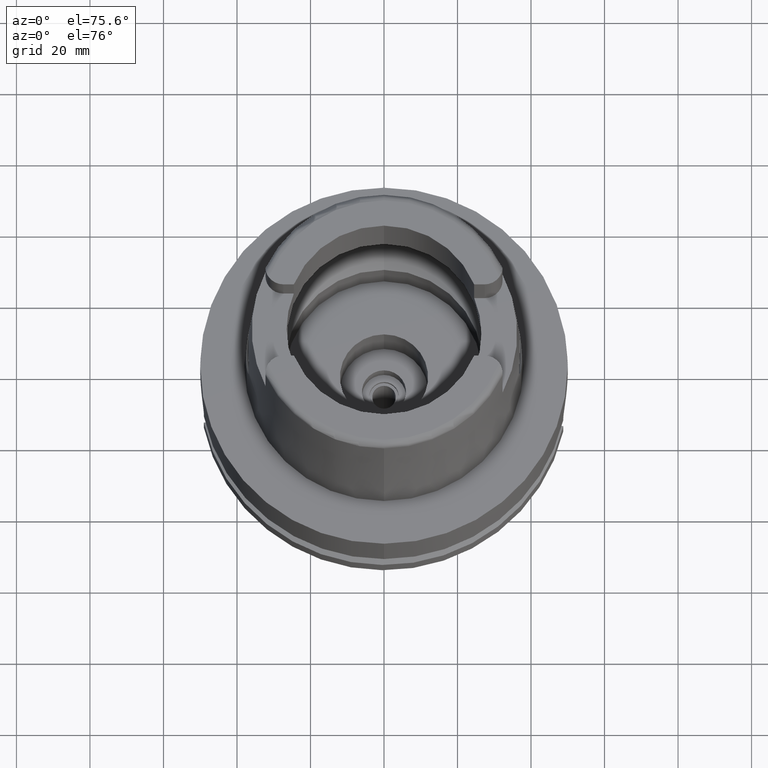
[diagram: clean part render]
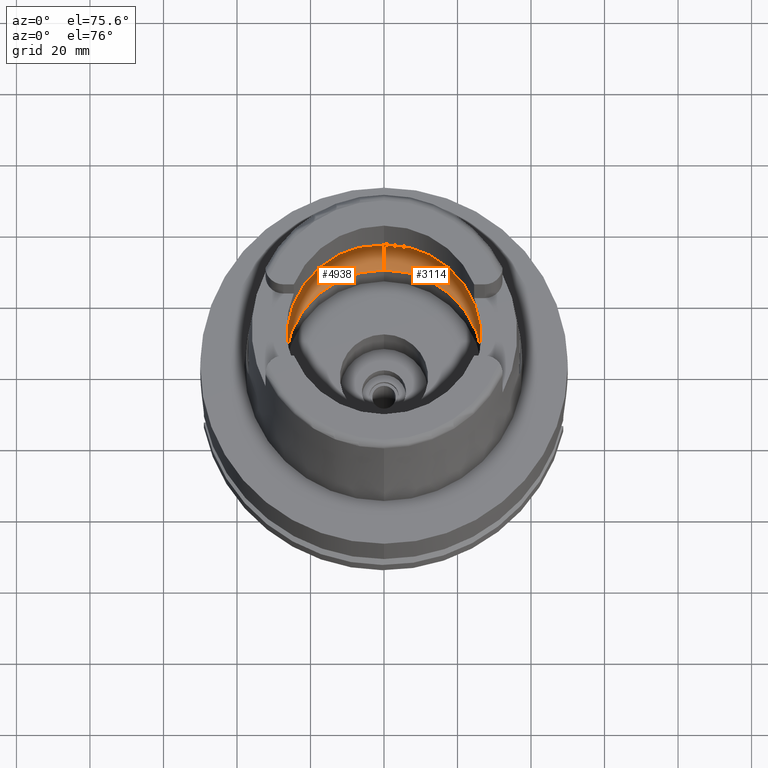
[diagram: same view with one multi-face feature highlighted, each face labeled with its STEP entity id]
A machine part, auxiliary view. The highlighted faces form ONE feature: a constant-radius fillet chain: 2 tangent blend faces with common blend radius 12 mm. The faces share edges in the B-rep.
Their STEP definitions:
[1] entity #4938 (Torus):
#57 = CARTESIAN_POINT ( 'NONE',  ( 0.0000000000000000000, 0.0000000000000000000, 9.496624327025999790 ) ) ;
#140 = DIRECTION ( 'NONE',  ( 0.0000000000000000000, 0.0000000000000000000, -1.000000000000000000 ) ) ;
#152 = CARTESIAN_POINT ( 'NONE',  ( -31.48971910754000447, 0.0000000000000000000, 9.000000000000000000 ) ) ;
#258 = CARTESIAN_POINT ( 'NONE',  ( -31.48971910754000447, 0.0000000000000000000, 9.000000000000000000 ) ) ;
#364 = VERTEX_POINT ( 'NONE', #258 ) ;
#424 = EDGE_CURVE ( 'NONE', #364, #4174, #2518, .T. ) ;
#544 = DIRECTION ( 'NONE',  ( -1.000000000000000000, 0.0000000000000000000, 0.0000000000000000000 ) ) ;
#657 = CARTESIAN_POINT ( 'NONE',  ( -31.46287568614665986, -1.684656700029165899, 9.190219625035021878 ) ) ;
#739 = ORIENTED_EDGE ( 'NONE', *, *, #424, .F. ) ;
#758 = AXIS2_PLACEMENT_3D ( 'NONE', #5295, #5824, #4389 ) ;
#973 = VERTEX_POINT ( 'NONE', #4364 ) ;
#1056 = CIRCLE ( 'NONE', #758, 11.99999999999999822 ) ;
#1279 = EDGE_LOOP ( 'NONE', ( #1684, #3192, #3551, #4428, #2115, #739, #4097 ) ) ;
#1357 = TOROIDAL_SURFACE ( 'NONE', #4069, 19.50000000000000000, 12.00000000000000000 ) ;
#1447 = AXIS2_PLACEMENT_3D ( 'NONE', #5758, #2014, #2899 ) ;
#1684 = ORIENTED_EDGE ( 'NONE', *, *, #2465, .F. ) ;
#1997 = DIRECTION ( 'NONE',  ( 0.0000000000000000000, -1.000000000000000000, 0.0000000000000000000 ) ) ;
#2014 = DIRECTION ( 'NONE',  ( 0.0000000000000000000, 0.0000000000000000000, 1.000000000000000000 ) ) ;
#2026 = CARTESIAN_POINT ( 'NONE',  ( 0.0000000000000000000, 0.0000000000000000000, 9.496624327025999790 ) ) ;
#2055 = DIRECTION ( 'NONE',  ( -0.9971171061384295209, 0.07587803796965221503, 0.0000000000000000000 ) ) ;
#2067 = CARTESIAN_POINT ( 'NONE',  ( -31.48971910754000447, 0.8697454016785111097, 9.000000000000001776 ) ) ;
#2115 = ORIENTED_EDGE ( 'NONE', *, *, #2919, .F. ) ;
#2212 = VERTEX_POINT ( 'NONE', #4875 ) ;
#2383 = CARTESIAN_POINT ( 'NONE',  ( -31.40918884336000616, -2.390158196043999705, 9.496624327025999790 ) ) ;
#2465 = EDGE_CURVE ( 'NONE', #3252, #5903, #5266, .T. ) ;
#2518 = B_SPLINE_CURVE_WITH_KNOTS ( 'NONE', 3,
 ( #152, #2067, #2986, #2603 ),
 .UNSPECIFIED., .F., .F.,
 ( 4, 4 ),
 ( 0.0000000000000000000, 1.000000000000000000 ),
 .UNSPECIFIED. ) ;
#2601 = VERTEX_POINT ( 'NONE', #4175 ) ;
#2603 = CARTESIAN_POINT ( 'NONE',  ( -31.40918884336000616, 2.390158196043999705, 9.496624327025999790 ) ) ;
#2899 = DIRECTION ( 'NONE',  ( 0.0000000000000000000, 1.000000000000000000, 0.0000000000000000000 ) ) ;
#2919 = EDGE_CURVE ( 'NONE', #4174, #2601, #2960, .T. ) ;
#2960 = CIRCLE ( 'NONE', #4172, 31.49999999999998934 ) ;
#2986 = CARTESIAN_POINT ( 'NONE',  ( -31.46287568614665986, 1.684656699916923683, 9.190219624986275093 ) ) ;
#2987 = DIRECTION ( 'NONE',  ( 0.0000000000000000000, 1.000000000000000000, 0.0000000000000000000 ) ) ;
#3014 = DIRECTION ( 'NONE',  ( 0.0000000000000000000, 0.0000000000000000000, 1.000000000000000000 ) ) ;
#3132 = CARTESIAN_POINT ( 'NONE',  ( -31.48971910754000447, -0.8697454018008697885, 8.999999999999998224 ) ) ;
#3169 = CIRCLE ( 'NONE', #4587, 11.99999999999999822 ) ;
#3192 = ORIENTED_EDGE ( 'NONE', *, *, #5699, .F. ) ;
#3252 = VERTEX_POINT ( 'NONE', #4254 ) ;
#3324 = B_SPLINE_CURVE_WITH_KNOTS ( 'NONE', 3,
 ( #5058, #657, #3132, #4024 ),
 .UNSPECIFIED., .F., .F.,
 ( 4, 4 ),
 ( 0.0000000000000000000, 1.000000000000000000 ),
 .UNSPECIFIED. ) ;
#3399 = EDGE_CURVE ( 'NONE', #2212, #2601, #1056, .T. ) ;
#3423 = EDGE_CURVE ( 'NONE', #2212, #973, #4180, .T. ) ;
#3524 = CARTESIAN_POINT ( 'NONE',  ( 0.0000000000000000000, -19.50000000000000000, 9.496624327025999790 ) ) ;
#3551 = ORIENTED_EDGE ( 'NONE', *, *, #3423, .F. ) ;
#3867 = FACE_OUTER_BOUND ( 'NONE', #1279, .T. ) ;
#4024 = CARTESIAN_POINT ( 'NONE',  ( -31.48971910754000447, 0.0000000000000000000, 9.000000000000000000 ) ) ;
#4069 = AXIS2_PLACEMENT_3D ( 'NONE', #57, #3014, #2987 ) ;
#4097 = ORIENTED_EDGE ( 'NONE', *, *, #5155, .F. ) ;
#4172 = AXIS2_PLACEMENT_3D ( 'NONE', #4457, #140, #2055 ) ;
#4174 = VERTEX_POINT ( 'NONE', #4692 ) ;
#4175 = CARTESIAN_POINT ( 'NONE',  ( 0.0000000000000000000, 31.50000000000000000, 9.496624327025999790 ) ) ;
#4180 = CIRCLE ( 'NONE', #1447, 26.89999999999999858 ) ;
#4254 = CARTESIAN_POINT ( 'NONE',  ( 0.0000000000000000000, -31.50000000000000000, 9.496624327025999790 ) ) ;
#4364 = CARTESIAN_POINT ( 'NONE',  ( 0.0000000000000000000, -26.89999999999999858, 0.04993178413037000635 ) ) ;
#4389 = DIRECTION ( 'NONE',  ( 0.0000000000000000000, 0.6166666666667049990, -0.7872243785746061429 ) ) ;
#4428 = ORIENTED_EDGE ( 'NONE', *, *, #3399, .T. ) ;
#4457 = CARTESIAN_POINT ( 'NONE',  ( 0.0000000000000000000, 0.0000000000000000000, 9.496624327025999790 ) ) ;
#4587 = AXIS2_PLACEMENT_3D ( 'NONE', #3524, #544, #4923 ) ;
#4692 = CARTESIAN_POINT ( 'NONE',  ( -31.40918884336000616, 2.390158196043999705, 9.496624327025999790 ) ) ;
#4773 = AXIS2_PLACEMENT_3D ( 'NONE', #2026, #5306, #1997 ) ;
#4875 = CARTESIAN_POINT ( 'NONE',  ( 0.0000000000000000000, 26.89999999999999858, 0.04993178413037000635 ) ) ;
#4923 = DIRECTION ( 'NONE',  ( 0.0000000000000000000, -0.6166666666667049990, -0.7872243785746061429 ) ) ;
#4938 = ADVANCED_FACE ( 'NONE', ( #3867 ), #1357, .F. ) ;
#5058 = CARTESIAN_POINT ( 'NONE',  ( -31.40918884336000616, -2.390158196043999705, 9.496624327025999790 ) ) ;
#5155 = EDGE_CURVE ( 'NONE', #5903, #364, #3324, .T. ) ;
#5266 = CIRCLE ( 'NONE', #4773, 31.50000000000000000 ) ;
#5295 = CARTESIAN_POINT ( 'NONE',  ( 0.0000000000000000000, 19.50000000000000000, 9.496624327025999790 ) ) ;
#5306 = DIRECTION ( 'NONE',  ( 0.0000000000000000000, 0.0000000000000000000, -1.000000000000000000 ) ) ;
#5699 = EDGE_CURVE ( 'NONE', #973, #3252, #3169, .T. ) ;
#5758 = CARTESIAN_POINT ( 'NONE',  ( 0.0000000000000000000, 0.0000000000000000000, 0.04993178413037000635 ) ) ;
#5824 = DIRECTION ( 'NONE',  ( 1.000000000000000000, 0.0000000000000000000, 0.0000000000000000000 ) ) ;
#5903 = VERTEX_POINT ( 'NONE', #2383 ) ;
[2] entity #3114 (Torus):
#97 = B_SPLINE_CURVE_WITH_KNOTS ( 'NONE', 3,
 ( #5343, #4851, #4761, #1001 ),
 .UNSPECIFIED., .F., .F.,
 ( 4, 4 ),
 ( 0.0000000000000000000, 1.000000000000000000 ),
 .UNSPECIFIED. ) ;
#202 = DIRECTION ( 'NONE',  ( 0.0000000000000000000, 1.000000000000000000, 0.0000000000000000000 ) ) ;
#271 = DIRECTION ( 'NONE',  ( 0.0000000000000000000, 0.0000000000000000000, -1.000000000000000000 ) ) ;
#419 = AXIS2_PLACEMENT_3D ( 'NONE', #4914, #3421, #3929 ) ;
#430 = EDGE_CURVE ( 'NONE', #2507, #3252, #2127, .T. ) ;
#544 = DIRECTION ( 'NONE',  ( -1.000000000000000000, 0.0000000000000000000, 0.0000000000000000000 ) ) ;
#588 = CARTESIAN_POINT ( 'NONE',  ( 31.48971910754000447, 0.0000000000000000000, 9.000000000000000000 ) ) ;
#758 = AXIS2_PLACEMENT_3D ( 'NONE', #5295, #5824, #4389 ) ;
#822 = AXIS2_PLACEMENT_3D ( 'NONE', #2146, #271, #4013 ) ;
#899 = CARTESIAN_POINT ( 'NONE',  ( 31.40918884336000616, -2.390158196043999705, 9.496624327025999790 ) ) ;
#920 = VERTEX_POINT ( 'NONE', #588 ) ;
#973 = VERTEX_POINT ( 'NONE', #4364 ) ;
#1001 = CARTESIAN_POINT ( 'NONE',  ( 31.48971910754000447, 0.0000000000000000000, 9.000000000000000000 ) ) ;
#1034 = EDGE_CURVE ( 'NONE', #2601, #2751, #4857, .T. ) ;
#1056 = CIRCLE ( 'NONE', #758, 11.99999999999999822 ) ;
#1138 = DIRECTION ( 'NONE',  ( 0.0000000000000000000, 0.0000000000000000000, 1.000000000000000000 ) ) ;
#1249 = ORIENTED_EDGE ( 'NONE', *, *, #3399, .F. ) ;
#1384 = ORIENTED_EDGE ( 'NONE', *, *, #1034, .F. ) ;
#1442 = TOROIDAL_SURFACE ( 'NONE', #2859, 19.50000000000000000, 12.00000000000000000 ) ;
#1588 = EDGE_LOOP ( 'NONE', ( #5492, #1384, #1249, #3751, #3094, #2114, #3664 ) ) ;
#1877 = CARTESIAN_POINT ( 'NONE',  ( 31.46287568614665986, -1.684656699965325632, 9.190219625007294724 ) ) ;
#2114 = ORIENTED_EDGE ( 'NONE', *, *, #430, .F. ) ;
#2127 = CIRCLE ( 'NONE', #419, 31.49999999999998934 ) ;
#2146 = CARTESIAN_POINT ( 'NONE',  ( 0.0000000000000000000, 0.0000000000000000000, 9.496624327025999790 ) ) ;
#2212 = VERTEX_POINT ( 'NONE', #4875 ) ;
#2309 = EDGE_CURVE ( 'NONE', #2751, #920, #97, .T. ) ;
#2507 = VERTEX_POINT ( 'NONE', #3924 ) ;
#2601 = VERTEX_POINT ( 'NONE', #4175 ) ;
#2654 = CIRCLE ( 'NONE', #2850, 26.89999999999999858 ) ;
#2693 = EDGE_CURVE ( 'NONE', #973, #2212, #2654, .T. ) ;
#2751 = VERTEX_POINT ( 'NONE', #6113 ) ;
#2850 = AXIS2_PLACEMENT_3D ( 'NONE', #5641, #5176, #3792 ) ;
#2859 = AXIS2_PLACEMENT_3D ( 'NONE', #5544, #1138, #202 ) ;
#3094 = ORIENTED_EDGE ( 'NONE', *, *, #5699, .T. ) ;
#3114 = ADVANCED_FACE ( 'NONE', ( #3599 ), #1442, .F. ) ;
#3169 = CIRCLE ( 'NONE', #4587, 11.99999999999999822 ) ;
#3252 = VERTEX_POINT ( 'NONE', #4254 ) ;
#3399 = EDGE_CURVE ( 'NONE', #2212, #2601, #1056, .T. ) ;
#3421 = DIRECTION ( 'NONE',  ( 0.0000000000000000000, 0.0000000000000000000, -1.000000000000000000 ) ) ;
#3524 = CARTESIAN_POINT ( 'NONE',  ( 0.0000000000000000000, -19.50000000000000000, 9.496624327025999790 ) ) ;
#3599 = FACE_OUTER_BOUND ( 'NONE', #1588, .T. ) ;
#3664 = ORIENTED_EDGE ( 'NONE', *, *, #5967, .F. ) ;
#3751 = ORIENTED_EDGE ( 'NONE', *, *, #2693, .F. ) ;
#3792 = DIRECTION ( 'NONE',  ( 0.0000000000000000000, -1.000000000000000000, 0.0000000000000000000 ) ) ;
#3924 = CARTESIAN_POINT ( 'NONE',  ( 31.40918884336000616, -2.390158196043999705, 9.496624327025999790 ) ) ;
#3929 = DIRECTION ( 'NONE',  ( 0.9971171061384295209, -0.07587803796965221503, 0.0000000000000000000 ) ) ;
#4013 = DIRECTION ( 'NONE',  ( 0.0000000000000000000, 1.000000000000000000, 0.0000000000000000000 ) ) ;
#4175 = CARTESIAN_POINT ( 'NONE',  ( 0.0000000000000000000, 31.50000000000000000, 9.496624327025999790 ) ) ;
#4254 = CARTESIAN_POINT ( 'NONE',  ( 0.0000000000000000000, -31.50000000000000000, 9.496624327025999790 ) ) ;
#4364 = CARTESIAN_POINT ( 'NONE',  ( 0.0000000000000000000, -26.89999999999999858, 0.04993178413037000635 ) ) ;
#4389 = DIRECTION ( 'NONE',  ( 0.0000000000000000000, 0.6166666666667049990, -0.7872243785746061429 ) ) ;
#4587 = AXIS2_PLACEMENT_3D ( 'NONE', #3524, #544, #4923 ) ;
#4761 = CARTESIAN_POINT ( 'NONE',  ( 31.48971910753999026, 0.8697454017787721314, 9.000000000000001776 ) ) ;
#4851 = CARTESIAN_POINT ( 'NONE',  ( 31.46287568614665986, 1.684656700008886121, 9.190219625026216477 ) ) ;
#4857 = CIRCLE ( 'NONE', #822, 31.50000000000000000 ) ;
#4875 = CARTESIAN_POINT ( 'NONE',  ( 0.0000000000000000000, 26.89999999999999858, 0.04993178413037000635 ) ) ;
#4914 = CARTESIAN_POINT ( 'NONE',  ( 0.0000000000000000000, 0.0000000000000000000, 9.496624327025999790 ) ) ;
#4923 = DIRECTION ( 'NONE',  ( 0.0000000000000000000, -0.6166666666667049990, -0.7872243785746061429 ) ) ;
#5176 = DIRECTION ( 'NONE',  ( 0.0000000000000000000, 0.0000000000000000000, 1.000000000000000000 ) ) ;
#5295 = CARTESIAN_POINT ( 'NONE',  ( 0.0000000000000000000, 19.50000000000000000, 9.496624327025999790 ) ) ;
#5342 = B_SPLINE_CURVE_WITH_KNOTS ( 'NONE', 3,
 ( #6191, #5627, #1877, #899 ),
 .UNSPECIFIED., .F., .F.,
 ( 4, 4 ),
 ( 0.0000000000000000000, 1.000000000000000000 ),
 .UNSPECIFIED. ) ;
#5343 = CARTESIAN_POINT ( 'NONE',  ( 31.40918884336000616, 2.390158196043999705, 9.496624327025999790 ) ) ;
#5492 = ORIENTED_EDGE ( 'NONE', *, *, #2309, .F. ) ;
#5544 = CARTESIAN_POINT ( 'NONE',  ( 0.0000000000000000000, 0.0000000000000000000, 9.496624327025999790 ) ) ;
#5627 = CARTESIAN_POINT ( 'NONE',  ( 31.48971910753999026, -0.8697454017312684638, 8.999999999999998224 ) ) ;
#5641 = CARTESIAN_POINT ( 'NONE',  ( 0.0000000000000000000, 0.0000000000000000000, 0.04993178413037000635 ) ) ;
#5699 = EDGE_CURVE ( 'NONE', #973, #3252, #3169, .T. ) ;
#5824 = DIRECTION ( 'NONE',  ( 1.000000000000000000, 0.0000000000000000000, 0.0000000000000000000 ) ) ;
#5967 = EDGE_CURVE ( 'NONE', #920, #2507, #5342, .T. ) ;
#6113 = CARTESIAN_POINT ( 'NONE',  ( 31.40918884336000616, 2.390158196043999705, 9.496624327025999790 ) ) ;
#6191 = CARTESIAN_POINT ( 'NONE',  ( 31.48971910754000447, 0.0000000000000000000, 9.000000000000000000 ) ) ;